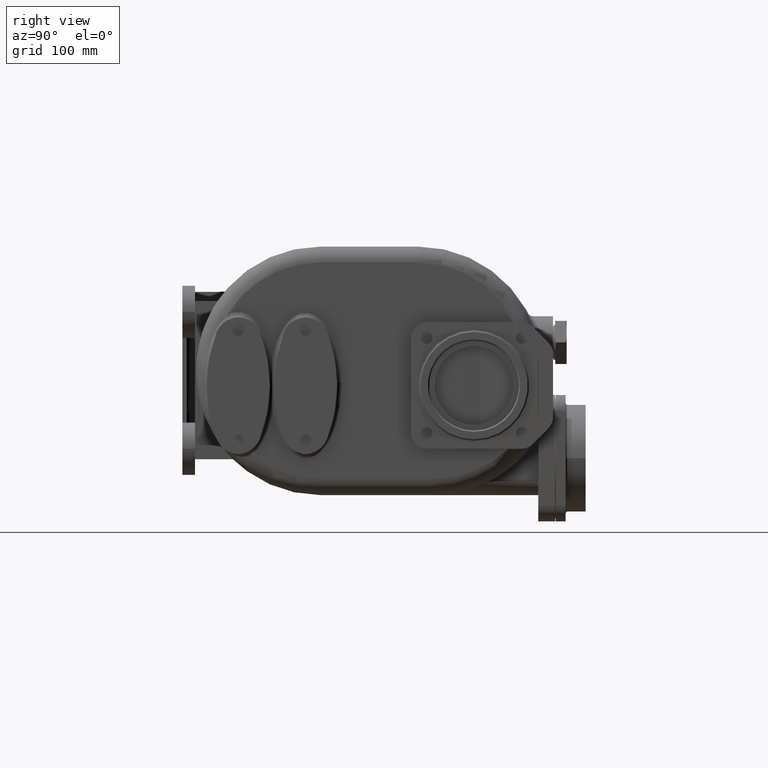
[diagram: clean part render]
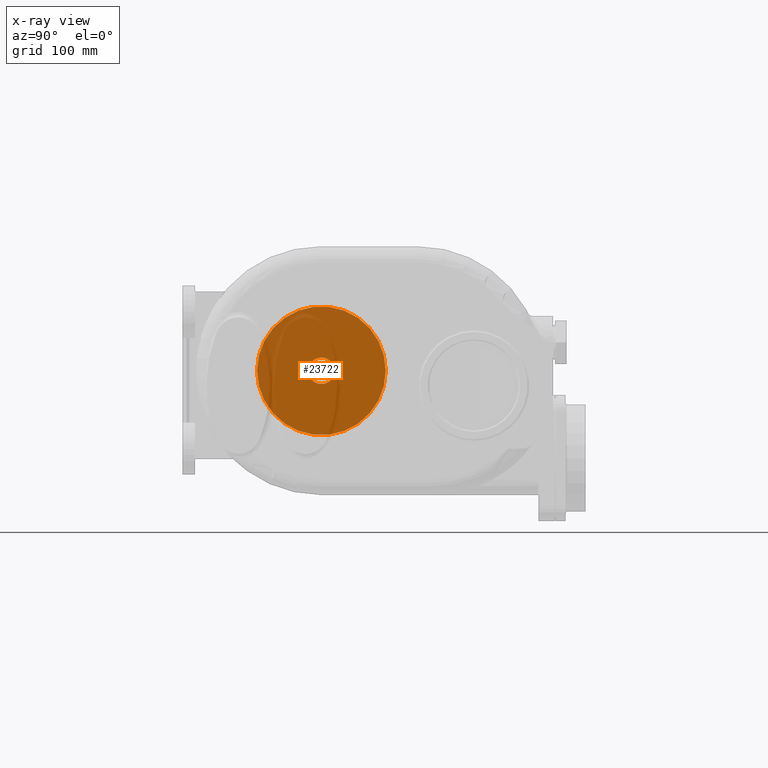
[diagram: x-ray — body ghosted, one internal face saturated and labeled with its STEP entity id]
A machine part, right view, then the same camera in x-ray: the body is ghosted and one INTERNAL B-rep face — a face not visible from any outside direction — is saturated and labeled: STEP entity #23722.
In plain terms, the highlighted planar face has unit normal (1, 0, 0).
Its self-contained STEP definition (entity closure, byte-faithful):
#5433=CARTESIAN_POINT('',(-5.55E1,1.2E2,0.E0));
#5434=DIRECTION('',(-1.E0,0.E0,0.E0));
#5435=DIRECTION('',(0.E0,-1.E0,0.E0));
#5436=AXIS2_PLACEMENT_3D('',#5433,#5434,#5435);
#5438=CARTESIAN_POINT('',(-5.55E1,1.2E2,0.E0));
#5439=DIRECTION('',(-1.E0,0.E0,0.E0));
#5440=DIRECTION('',(0.E0,1.E0,0.E0));
#5441=AXIS2_PLACEMENT_3D('',#5438,#5439,#5440);
#5443=CARTESIAN_POINT('',(-5.55E1,1.2E2,0.E0));
#5444=DIRECTION('',(1.E0,0.E0,0.E0));
#5445=DIRECTION('',(0.E0,0.E0,-1.E0));
#5446=AXIS2_PLACEMENT_3D('',#5443,#5444,#5445);
#5448=CARTESIAN_POINT('',(-5.55E1,1.2E2,0.E0));
#5449=DIRECTION('',(1.E0,0.E0,0.E0));
#5450=DIRECTION('',(0.E0,0.E0,1.E0));
#5451=AXIS2_PLACEMENT_3D('',#5448,#5449,#5450);
#5453=CARTESIAN_POINT('',(-5.55E1,1.2E2,0.E0));
#5454=DIRECTION('',(1.E0,0.E0,0.E0));
#5455=DIRECTION('',(0.E0,9.608329719571E-1,2.771281292110E-1));
#5456=AXIS2_PLACEMENT_3D('',#5453,#5454,#5455);
#5458=DIRECTION('',(0.E0,1.E0,0.E0));
#5459=VECTOR('',#5458,3.510412149464E0);
#5460=CARTESIAN_POINT('',(-5.55E1,1.285E2,3.464101615138E0));
#5461=LINE('',#5460,#5459);
#5462=DIRECTION('',(0.E0,0.E0,-1.E0));
#5463=VECTOR('',#5462,6.928203230276E0);
#5464=CARTESIAN_POINT('',(-5.55E1,1.285E2,3.464101615138E0));
#5465=LINE('',#5464,#5463);
#5466=DIRECTION('',(0.E0,1.E0,0.E0));
#5467=VECTOR('',#5466,3.510412149464E0);
#5468=CARTESIAN_POINT('',(-5.55E1,1.285E2,-3.464101615138E0));
#5469=LINE('',#5468,#5467);
#16038=CARTESIAN_POINT('',(-5.55E1,5.887750100080E1,1.775615664219E-14));
#16039=CARTESIAN_POINT('',(-5.55E1,1.811224989992E2,-1.008707234679E-14));
#16040=VERTEX_POINT('',#16038);
#16041=VERTEX_POINT('',#16039);
#16730=CARTESIAN_POINT('',(-5.55E1,1.2E2,-1.25E1));
#16731=CARTESIAN_POINT('',(-5.55E1,1.320104121495E2,-3.464101615138E0));
#16732=VERTEX_POINT('',#16730);
#16733=VERTEX_POINT('',#16731);
#16734=CARTESIAN_POINT('',(-5.55E1,1.320104121495E2,3.464101615138E0));
#16735=CARTESIAN_POINT('',(-5.55E1,1.2E2,1.25E1));
#16736=VERTEX_POINT('',#16734);
#16737=VERTEX_POINT('',#16735);
#16738=CARTESIAN_POINT('',(-5.55E1,1.285E2,3.464101615138E0));
#16739=CARTESIAN_POINT('',(-5.55E1,1.285E2,-3.464101615138E0));
#16740=VERTEX_POINT('',#16738);
#16741=VERTEX_POINT('',#16739);
#23699=CARTESIAN_POINT('',(-5.55E1,1.2E2,0.E0));
#23700=DIRECTION('',(1.E0,0.E0,0.E0));
#23701=DIRECTION('',(0.E0,0.E0,1.E0));
#23702=AXIS2_PLACEMENT_3D('',#23699,#23700,#23701);
#23703=PLANE('',#23702);
#23705=ORIENTED_EDGE('',*,*,#23704,.F.);
#23707=ORIENTED_EDGE('',*,*,#23706,.F.);
#23708=EDGE_LOOP('',(#23705,#23707));
#23709=FACE_OUTER_BOUND('',#23708,.F.);
#23710=ORIENTED_EDGE('',*,*,#23677,.F.);
#23712=ORIENTED_EDGE('',*,*,#23711,.F.);
#23713=ORIENTED_EDGE('',*,*,#23689,.F.);
#23715=ORIENTED_EDGE('',*,*,#23714,.F.);
#23717=ORIENTED_EDGE('',*,*,#23716,.T.);
#23719=ORIENTED_EDGE('',*,*,#23718,.T.);
#23720=EDGE_LOOP('',(#23710,#23712,#23713,#23715,#23717,#23719));
#23721=FACE_BOUND('',#23720,.F.);
#23722=ADVANCED_FACE('',(#23709,#23721),#23703,.F.);
#5437=CIRCLE('',#5436,6.112249899920E1);
#5442=CIRCLE('',#5441,6.112249899920E1);
#5447=CIRCLE('',#5446,1.25E1);
#5452=CIRCLE('',#5451,1.25E1);
#5457=CIRCLE('',#5456,1.25E1);
#23677=EDGE_CURVE('',#16732,#16733,#5447,.T.);
#23689=EDGE_CURVE('',#16736,#16737,#5457,.T.);
#23704=EDGE_CURVE('',#16040,#16041,#5437,.T.);
#23706=EDGE_CURVE('',#16041,#16040,#5442,.T.);
#23711=EDGE_CURVE('',#16737,#16732,#5452,.T.);
#23714=EDGE_CURVE('',#16740,#16736,#5461,.T.);
#23716=EDGE_CURVE('',#16740,#16741,#5465,.T.);
#23718=EDGE_CURVE('',#16741,#16733,#5469,.T.);